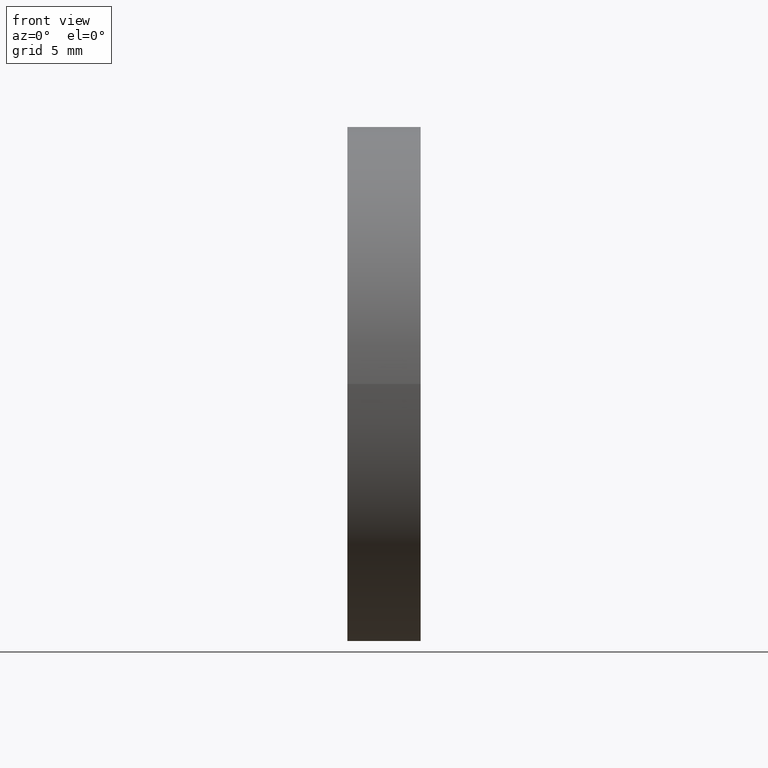
[diagram: clean part render]
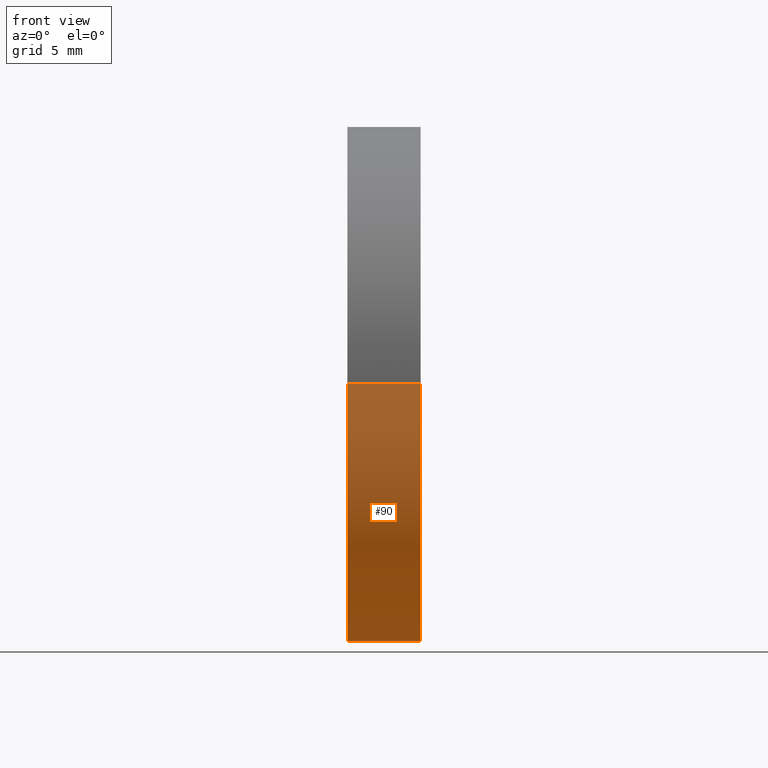
[diagram: same view with one face highlighted and labeled with its STEP entity id]
A machine part, front view. The second image highlights one B-rep face of the part: STEP entity #90.
In plain terms, the highlighted cylindrical surface (partial cylindrical patch) has radius 20 mm, axis along (-1, 0, -0).
Its self-contained STEP definition (entity closure, byte-faithful):
#13 = ORIENTED_EDGE ( 'NONE', *, *, #95, .F. ) ;
#14 = EDGE_CURVE ( 'NONE', #27, #81, #148, .T. ) ;
#16 = CARTESIAN_POINT ( 'NONE',  ( 120.6519792980244600, 85.15745182658623900, 2.449293384892353000E-015 ) ) ;
#19 = CARTESIAN_POINT ( 'NONE',  ( 120.6519792980244300, 45.15745356914864300, 0.0000000000000000000 ) ) ;
#23 = EDGE_CURVE ( 'NONE', #94, #144, #39, .T. ) ;
#27 = VERTEX_POINT ( 'NONE', #16 ) ;
#29 = CYLINDRICAL_SURFACE ( 'NONE', #117, 20.00000000000001100 ) ;
#34 = AXIS2_PLACEMENT_3D ( 'NONE', #142, #161, #61 ) ;
#37 = DIRECTION ( 'NONE',  ( -1.000000000000000000, 6.488933942079480100E-016, -0.0000000000000000000 ) ) ;
#39 = LINE ( 'NONE', #86, #140 ) ;
#43 = DIRECTION ( 'NONE',  ( -1.000000000000000000, 6.488933942079480100E-016, -0.0000000000000000000 ) ) ;
#44 = EDGE_CURVE ( 'NONE', #27, #94, #158, .T. ) ;
#47 = CARTESIAN_POINT ( 'NONE',  ( 114.9754472601862300, 85.15745182658619700, 2.449293598294706500E-015 ) ) ;
#51 = CARTESIAN_POINT ( 'NONE',  ( 114.9754472601862000, 45.15745182658619000, 0.0000000000000000000 ) ) ;
#55 = ORIENTED_EDGE ( 'NONE', *, *, #23, .T. ) ;
#59 = EDGE_LOOP ( 'NONE', ( #84, #111, #55, #13 ) ) ;
#60 = DIRECTION ( 'NONE',  ( -6.938893903907224400E-016, -1.000000000000000000, 0.0000000000000000000 ) ) ;
#61 = DIRECTION ( 'NONE',  ( -6.938893903907219500E-016, -1.000000000000000000, 0.0000000000000000000 ) ) ;
#63 = CARTESIAN_POINT ( 'NONE',  ( 110.0147892488423600, 65.15745182658619700, 0.0000000000000000000 ) ) ;
#69 = VECTOR ( 'NONE', #97, 1000.000000000000000 ) ;
#80 = DIRECTION ( 'NONE',  ( -6.938893903907227400E-016, -1.000000000000000000, 0.0000000000000000000 ) ) ;
#81 = VERTEX_POINT ( 'NONE', #47 ) ;
#84 = ORIENTED_EDGE ( 'NONE', *, *, #14, .F. ) ;
#86 = CARTESIAN_POINT ( 'NONE',  ( 110.0147892488423500, 45.15745182658618300, 0.0000000000000000000 ) ) ;
#90 = ADVANCED_FACE ( 'NONE', ( #93 ), #29, .T. ) ;
#93 = FACE_OUTER_BOUND ( 'NONE', #59, .T. ) ;
#94 = VERTEX_POINT ( 'NONE', #19 ) ;
#95 = EDGE_CURVE ( 'NONE', #81, #144, #156, .T. ) ;
#97 = DIRECTION ( 'NONE',  ( -1.000000000000000000, 6.488933942079480100E-016, -0.0000000000000000000 ) ) ;
#111 = ORIENTED_EDGE ( 'NONE', *, *, #44, .T. ) ;
#117 = AXIS2_PLACEMENT_3D ( 'NONE', #63, #154, #60 ) ;
#126 = CARTESIAN_POINT ( 'NONE',  ( 110.0147892488423800, 85.15745182658621100, 2.449293598294708100E-015 ) ) ;
#140 = VECTOR ( 'NONE', #43, 1000.000000000000000 ) ;
#142 = CARTESIAN_POINT ( 'NONE',  ( 120.6519792980244300, 65.15745182658619700, 0.0000000000000000000 ) ) ;
#144 = VERTEX_POINT ( 'NONE', #51 ) ;
#145 = CARTESIAN_POINT ( 'NONE',  ( 114.9754472601862100, 65.15745182658619700, 0.0000000000000000000 ) ) ;
#148 = LINE ( 'NONE', #126, #69 ) ;
#154 = DIRECTION ( 'NONE',  ( -1.000000000000000000, 6.488933942079480100E-016, -0.0000000000000000000 ) ) ;
#156 = CIRCLE ( 'NONE', #160, 20.00000000000000400 ) ;
#158 = CIRCLE ( 'NONE', #34, 20.00000000000002500 ) ;
#160 = AXIS2_PLACEMENT_3D ( 'NONE', #145, #37, #80 ) ;
#161 = DIRECTION ( 'NONE',  ( -1.000000000000000000, 6.488933942079480100E-016, -0.0000000000000000000 ) ) ;